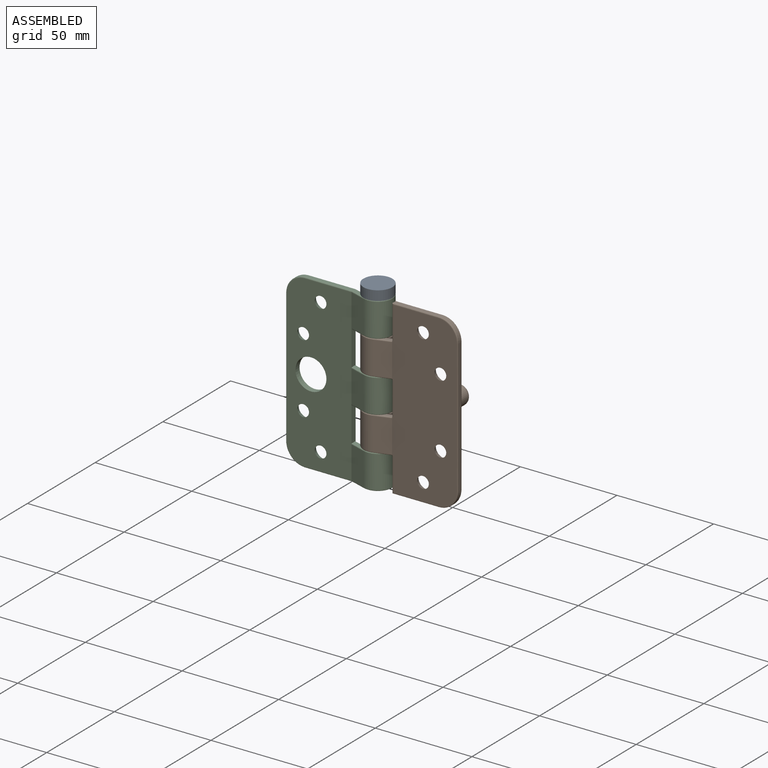
[diagram: assembled view]
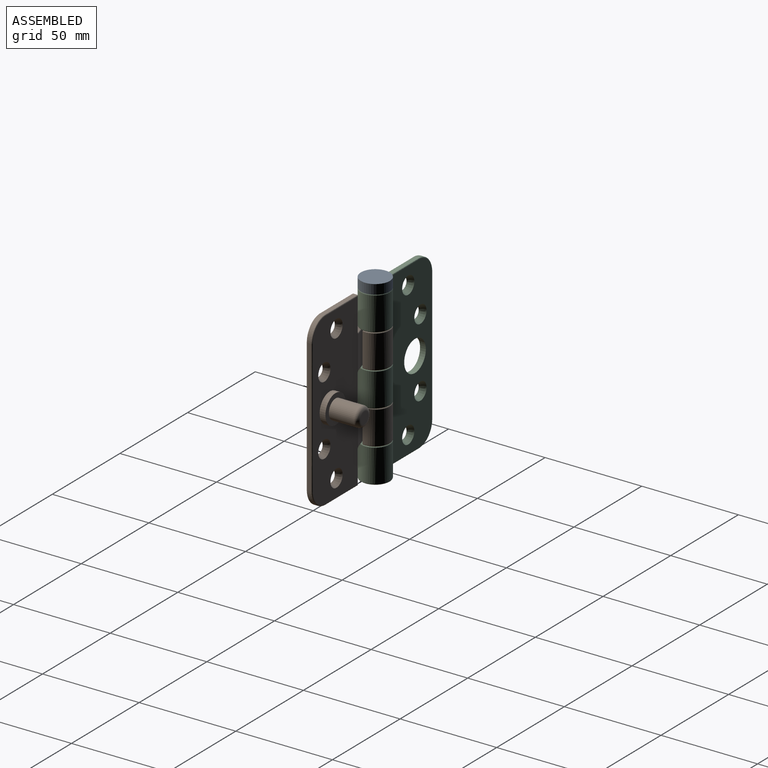
[diagram: assembled view, second angle]
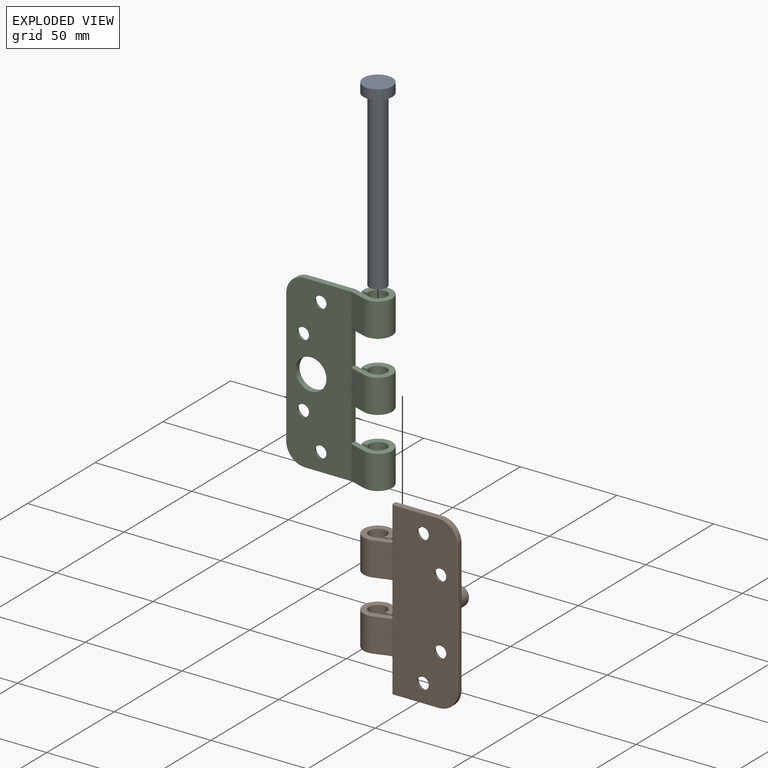
[diagram: exploded view]
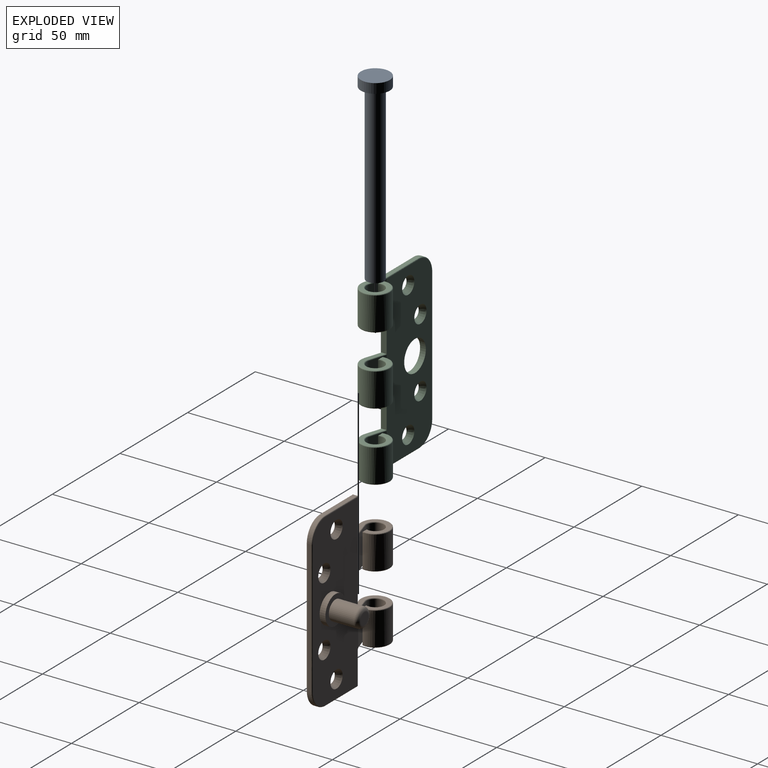
[diagram: exploded view, second angle]
ASSEMBLY  parts=3 mates=2
PART A: 5 faces, bbox 15x95x15 mm
  f0: cylinder r=4.5mm len=90mm, axis (0,-1,0), area 2544.7mm2, adj f1,f3
  f1: plane 9x9mm, normal (0,1,0), area 63.6mm2, adj f0
  f2: cylinder r=7.5mm len=15mm, axis (0,1,0), area 235.6mm2, adj f3,f4
  f3: plane 15x15mm, normal (0,1,0), area 113.1mm2, adj f0,f2
  f4: plane 15x15mm, normal (0,-1,0), area 176.7mm2, adj f2
PART B: 84 faces, bbox 52.3x98x24.3 mm
  f0: bspline ~0.92x0.76mm, area 0.3mm2, adj f1,f12,f37,f40
  f1: bspline ~0.89x0.77mm, area 0.4mm2, adj f0,f12,f22,f36,f37,f42
  f2: bspline ~0.69x0.66mm, area 0.2mm2, adj f3,f14,f24,f37,f47
  f3: bspline ~0.91x0.8mm, area 0.4mm2, adj f2,f24,f36,f37,f51
  f4: bspline ~0.89x0.77mm, area 0.4mm2, adj f13,f22,f31,f32,f52,f55
  f5: bspline ~0.91x0.8mm, area 0.4mm2, adj f24,f31,f32,f62,f65
  f6: bspline ~0.69x0.66mm, area 0.2mm2, adj f7,f15,f24,f34,f67
  f7: bspline ~0.91x0.8mm, area 0.4mm2, adj f6,f24,f33,f34,f68
  f8: bspline ~0.91x0.8mm, area 0.4mm2, adj f24,f33,f35,f68,f69
  f9: bspline ~0.89x0.77mm, area 0.4mm2, adj f12,f22,f33,f35,f75,f76
  f10: bspline ~0.89x0.77mm, area 0.4mm2, adj f11,f13,f22,f33,f34,f76
  f11: bspline ~0.92x0.76mm, area 0.3mm2, adj f10,f13,f34,f77
  f12: plane 17.26x9.19mm, normal (-0.29,0,0.96), area 161.5mm2, adj f0,f1,f9,f20,f22,f40,f74,f75
  f13: plane 17.26x9.19mm, normal (-0.29,0,0.96), area 161.5mm2, adj f4,f10,f11,f21,f22,f55,f57,f77
  f14: plane 16.93x8.2mm, normal (0.31,0,-0.95), area 144.8mm2, adj f2,f16,f24,f47,f69,f70
  f15: plane 16.93x8.2mm, normal (0.31,0,-0.95), area 144.8mm2, adj f6,f17,f24,f64,f65,f67
  f16: cylinder r=7.5mm len=16.8mm, axis (0,1,0), area 658.4mm2, adj f14,f18,f45,f71
  f17: cylinder r=7.5mm len=16.8mm, axis (0,1,0), area 658.4mm2, adj f15,f19,f63,f66
  f18: plane 16.8x3.11mm, normal (0,0,-1), area 52.2mm2, adj f16,f20,f43,f72
  f19: plane 17.37x3.18mm, normal (0,0,-1), area 53.6mm2, adj f17,f21,f34,f61,f66,f78
  f20: cylinder r=4.5mm len=16.8mm, axis (0,1,0), area 404.3mm2, adj f12,f18,f41,f73
  f21: cylinder r=4.5mm len=16.8mm, axis (0,1,0), area 404.3mm2, adj f13,f19,f59,f78
  f22: plane 88.01x33.51mm, normal (0,0,1), area 2451.5mm2, adj f1,f4,f9,f10,f12,f13,f27,f28
  f23: plane 69x2mm, normal (1,0,0), area 138mm2, adj f38,f39,f48,f56
  f24: plane 88.01x33.52mm, normal (0,0,-1), area 2769.2mm2, adj f2,f3,f5,f6,f7,f8,f14,f15
  f25: plane 24x2mm, normal (0,-1,0), area 48mm2, adj f36,f39,f44,f53
  f26: plane 24x2mm, normal (0,1,0), area 48mm2, adj f31,f38,f50,f60
  f27: cone r=3mm half-angle=26.6deg, axis (0,0,1), area 79mm2, adj f22,f24
  f28: cone r=4.5mm half-angle=26.6deg, axis (0,0,1), area 79mm2, adj f22,f24
  f29: cone r=4.5mm half-angle=26.6deg, axis (0,0,1), area 79mm2, adj f22,f24
  f30: cone r=4.5mm half-angle=26.6deg, axis (0,0,1), area 79mm2, adj f22,f24
  f31: plane 17.83x2.91mm, normal (-1,0,0), area 35.9mm2, adj f4,f5,f26,f32,f52,f62
  f32: plane 17.63x14.14mm, normal (0,1,0), area 80.1mm2, adj f4,f5,f31,f55,f57,f59,f61,f63
  f33: plane 17.83x2.91mm, normal (-1,0,0), area 36.1mm2, adj f7,f8,f9,f10,f34,f35,f68,f76
  f34: plane 17.63x14.14mm, normal (0,-1,0), area 81.1mm2, adj f6,f7,f10,f11,f19,f33,f66,f67
  f35: plane 17.63x14.14mm, normal (0,1,0), area 80.1mm2, adj f8,f9,f33,f69,f70,f71,f72,f73
  f36: plane 17.83x2.91mm, normal (-1,0,0), area 35.9mm2, adj f1,f3,f25,f37,f42,f51
  f37: plane 17.63x14.14mm, normal (0,-1,0), area 80.1mm2, adj f0,f1,f2,f3,f36,f40,f41,f43
  f38: cylinder r=10mm len=10mm, axis (0,0,-1), area 31.4mm2, adj f23,f26,f49,f58
  f39: cylinder r=10mm len=10mm, axis (0,0,1), area 31.4mm2, adj f23,f25,f46,f54
  f40: bspline ~8.69x3.09mm, area 7.2mm2, adj f0,f12,f37,f41
  f41: bspline ~10.21x10.19mm, area 20mm2, adj f20,f37,f40,f43
  f42: bspline ~97.9x0.5mm, area 13.8mm2, adj f1,f22,f36,f44
  f43: bspline ~3.42x0.5mm, area 2.1mm2, adj f18,f37,f41,f45
  f44: bspline ~25.2x0.5mm, area 19.3mm2, adj f22,f25,f42,f46
  f45: bspline ~14.99x14.99mm, area 30.9mm2, adj f16,f37,f43,f47
  f46: bspline ~10x10mm, area 12.5mm2, adj f22,f39,f44,f48
  f47: bspline ~8.01x3mm, area 6.7mm2, adj f2,f14,f37,f45
  f48: bspline ~69x0.5mm, area 56mm2, adj f22,f23,f46,f49
  f49: bspline ~10x10mm, area 12.5mm2, adj f22,f38,f48,f50
  f50: bspline ~25.2x0.5mm, area 19.3mm2, adj f22,f26,f49,f52
  f51: bspline ~97.9x0.5mm, area 13.8mm2, adj f3,f24,f36,f53
  f52: bspline ~97.9x0.5mm, area 13.8mm2, adj f4,f22,f31,f50
  f53: bspline ~25.2x0.5mm, area 19.3mm2, adj f24,f25,f51,f54
  f54: bspline ~10x10mm, area 12.5mm2, adj f24,f39,f53,f56
  f55: bspline ~0.92x0.76mm, area 0.3mm2, adj f4,f13,f32,f57
  f56: bspline ~69x0.5mm, area 56mm2, adj f23,f24,f54,f58
  f57: bspline ~8.69x3.09mm, area 7.2mm2, adj f13,f32,f55,f59
  f58: bspline ~10x10mm, area 12.5mm2, adj f24,f38,f56,f60
  f59: bspline ~10.21x10.19mm, area 20mm2, adj f21,f32,f57,f61
  f60: bspline ~25.2x0.5mm, area 19.3mm2, adj f24,f26,f58,f62
  f61: bspline ~3.42x0.5mm, area 2.1mm2, adj f19,f32,f59,f63
  f62: bspline ~97.9x0.5mm, area 13.8mm2, adj f5,f24,f31,f60
  f63: bspline ~14.99x14.99mm, area 30.9mm2, adj f17,f32,f61,f64
  f64: bspline ~8.01x3mm, area 6.7mm2, adj f15,f32,f63,f65
  f65: bspline ~0.69x0.66mm, area 0.2mm2, adj f5,f15,f24,f32,f64
  f66: bspline ~15.38x15.19mm, area 31.1mm2, adj f17,f19,f34,f67
  f67: bspline ~8.01x3mm, area 6.7mm2, adj f6,f15,f34,f66
  f68: bspline ~97.9x0.5mm, area 13.6mm2, adj f7,f8,f24,f33
  f69: bspline ~0.69x0.66mm, area 0.2mm2, adj f8,f14,f24,f35,f70
  f70: bspline ~8.01x3mm, area 6.7mm2, adj f14,f35,f69,f71
  f71: bspline ~14.99x14.99mm, area 30.9mm2, adj f16,f35,f70,f72
  f72: bspline ~3.42x0.5mm, area 2.1mm2, adj f18,f35,f71,f73
  f73: bspline ~10.21x10.19mm, area 20mm2, adj f20,f35,f72,f74
  f74: bspline ~8.69x3.09mm, area 7.2mm2, adj f12,f35,f73,f75
  f75: bspline ~0.92x0.76mm, area 0.3mm2, adj f9,f12,f35,f74
  f76: bspline ~97.9x0.5mm, area 13.6mm2, adj f9,f10,f22,f33
  f77: bspline ~8.69x3.09mm, area 7.2mm2, adj f11,f13,f34,f78
  f78: bspline ~10x9.99mm, area 20.2mm2, adj f19,f21,f34,f77
  f79: cylinder r=7.5mm len=15mm, axis (0,0,-1), area 141.4mm2, adj f22,f80
  f80: plane 15x15mm, normal (0,0,1), area 98.2mm2, adj f79,f81
  f81: cylinder r=5mm len=13mm, axis (0,0,-1), area 408.4mm2, adj f80,f83
  f82: plane 6x6mm, normal (0,0,1), area 28.3mm2, adj f83
  f83: torus R=3mm, axis (0,0,1), area 84.4mm2, adj f81,f82
PART C: 73 faces, bbox 52.1x89.1x15.1 mm
  f0: plane 16.8x9.19mm, normal (0.29,0,0.96), area 161.4mm2, adj f8,f11,f42,f47
  f1: plane 16.8x9.19mm, normal (0.29,0,0.96), area 161.4mm2, adj f9,f11,f52,f63
  f2: plane 16.8x8.2mm, normal (-0.31,0,-0.95), area 144.8mm2, adj f4,f13,f38,f43
  f3: plane 16.8x8.2mm, normal (-0.31,0,-0.95), area 144.8mm2, adj f5,f13,f48,f55
  f4: cylinder r=7.5mm len=16.8mm, axis (0,1,0), area 658.4mm2, adj f2,f6,f39,f44
  f5: cylinder r=7.5mm len=16.8mm, axis (0,1,0), area 658.4mm2, adj f3,f7,f49,f57
  f6: plane 16.8x3.11mm, normal (0,0,-1), area 52.2mm2, adj f4,f8,f40,f45
  f7: plane 16.8x3.11mm, normal (0,0,-1), area 52.2mm2, adj f5,f9,f50,f59
  f8: cylinder r=4.5mm len=16.8mm, axis (0,1,0), area 404.3mm2, adj f0,f6,f41,f46
  f9: cylinder r=4.5mm len=16.8mm, axis (0,1,0), area 404.3mm2, adj f1,f7,f51,f61
  f10: plane 16.8x9.19mm, normal (0.29,0,0.96), area 161.4mm2, adj f11,f17,f37,f70
  f11: plane 88.01x33.51mm, normal (0,0,1), area 2453.6mm2, adj f0,f1,f10,f20,f21,f22,f23,f24
  f12: plane 69x2mm, normal (-1,0,0), area 138mm2, adj f31,f32,f56,f69
  f13: plane 88.01x33.51mm, normal (0,0,-1), area 2595.1mm2, adj f2,f3,f14,f20,f21,f22,f23,f24
  f14: plane 16.8x8.2mm, normal (-0.31,0,-0.95), area 144.8mm2, adj f13,f15,f33,f62
  f15: cylinder r=7.5mm len=16.8mm, axis (0,1,0), area 658.4mm2, adj f14,f16,f34,f64
  f16: plane 16.8x3.11mm, normal (0,0,-1), area 52.2mm2, adj f15,f17,f35,f66
  f17: cylinder r=4.5mm len=16.8mm, axis (0,1,0), area 404.3mm2, adj f10,f16,f36,f68
  f18: plane 41.54x14.05mm, normal (0,-1,0), area 127.8mm2, adj f31,f60,f62,f64,f66,f68,f70,f72
  f19: plane 41.54x14.05mm, normal (0,1,0), area 127.8mm2, adj f32,f53,f55,f57,f59,f61,f63,f65
  f20: cone r=3mm half-angle=26.6deg, axis (0,0,1), area 79mm2, adj f11,f13
  f21: cone r=4.5mm half-angle=26.6deg, axis (0,0,1), area 79mm2, adj f11,f13
  f22: cone r=4.5mm half-angle=26.6deg, axis (0,0,1), area 79mm2, adj f11,f13
  f23: cone r=4.5mm half-angle=26.6deg, axis (0,0,1), area 79mm2, adj f11,f13
  f24: plane 18.88x3.08mm, normal (1,0,0), area 53.6mm2, adj f11,f13,f25,f26,f43,f47,f48,f52
  f25: plane 17.54x14.05mm, normal (0,1,0), area 79.8mm2, adj f24,f43,f44,f45,f46,f47
  f26: plane 17.54x14.05mm, normal (0,-1,0), area 79.8mm2, adj f24,f48,f49,f50,f51,f52
  f27: plane 18.88x3.08mm, normal (1,0,0), area 53.6mm2, adj f11,f13,f28,f29,f33,f37,f38,f42
  f28: plane 17.54x14.05mm, normal (0,1,0), area 79.8mm2, adj f27,f33,f34,f35,f36,f37
  f29: plane 17.54x14.05mm, normal (0,-1,0), area 79.8mm2, adj f27,f38,f39,f40,f41,f42
  f30: cylinder r=8mm len=16mm, axis (0,0,-1), area 150.8mm2, adj f11,f13
  f31: cylinder r=10mm len=10mm, axis (0,0,1), area 31.4mm2, adj f12,f18,f58,f71
  f32: cylinder r=10mm len=10mm, axis (0,0,-1), area 31.4mm2, adj f12,f19,f54,f67
  f33: bspline ~8.93x3.3mm, area 7.1mm2, adj f14,f27,f28,f34
  f34: bspline ~14.99x14.99mm, area 30.9mm2, adj f15,f28,f33,f35
  f35: bspline ~3.42x0.5mm, area 2.1mm2, adj f16,f28,f34,f36
  f36: bspline ~10.21x10.19mm, area 20mm2, adj f17,f28,f35,f37
  f37: bspline ~9.33x3.28mm, area 7.7mm2, adj f10,f27,f28,f36
  f38: bspline ~8.93x3.3mm, area 7.1mm2, adj f2,f27,f29,f39
  f39: bspline ~14.99x14.99mm, area 30.9mm2, adj f4,f29,f38,f40
  f40: bspline ~3.42x0.5mm, area 2.1mm2, adj f6,f29,f39,f41
  f41: bspline ~10.21x10.19mm, area 20mm2, adj f8,f29,f40,f42
  f42: bspline ~9.33x3.28mm, area 7.7mm2, adj f0,f27,f29,f41
  f43: bspline ~8.93x3.3mm, area 7.1mm2, adj f2,f24,f25,f44
  f44: bspline ~14.99x14.99mm, area 30.9mm2, adj f4,f25,f43,f45
  f45: bspline ~3.42x0.5mm, area 2.1mm2, adj f6,f25,f44,f46
  f46: bspline ~10.21x10.19mm, area 20mm2, adj f8,f25,f45,f47
  f47: bspline ~9.33x3.28mm, area 7.7mm2, adj f0,f24,f25,f46
  f48: bspline ~8.93x3.3mm, area 7.1mm2, adj f3,f24,f26,f49
  f49: bspline ~14.99x14.99mm, area 30.9mm2, adj f5,f26,f48,f50
  f50: bspline ~3.42x0.5mm, area 2.1mm2, adj f7,f26,f49,f51
  f51: bspline ~10.21x10.19mm, area 20mm2, adj f9,f26,f50,f52
  f52: bspline ~9.33x3.28mm, area 7.7mm2, adj f1,f24,f26,f51
  f53: bspline ~24.48x0.5mm, area 19.5mm2, adj f13,f19,f54,f55
  f54: bspline ~10x10mm, area 12.5mm2, adj f13,f32,f53,f56
  f55: bspline ~8.43x3.14mm, area 7mm2, adj f3,f19,f53,f57
  f56: bspline ~69x0.5mm, area 56mm2, adj f12,f13,f54,f58
  f57: bspline ~14.99x14.99mm, area 30.9mm2, adj f5,f19,f55,f59
  f58: bspline ~10x10mm, area 12.5mm2, adj f13,f31,f56,f60
  f59: bspline ~3.42x0.5mm, area 2.1mm2, adj f7,f19,f57,f61
  f60: bspline ~24.48x0.5mm, area 19.5mm2, adj f13,f18,f58,f62
  f61: bspline ~10.21x10.19mm, area 20mm2, adj f9,f19,f59,f63
  f62: bspline ~8.43x3.14mm, area 7mm2, adj f14,f18,f60,f64
  f63: bspline ~9.79x3.42mm, area 7.8mm2, adj f1,f19,f61,f65
  f64: bspline ~14.99x14.99mm, area 30.9mm2, adj f15,f18,f62,f66
  f65: bspline ~25.2x0.5mm, area 19.4mm2, adj f11,f19,f63,f67
  f66: bspline ~3.42x0.5mm, area 2.1mm2, adj f16,f18,f64,f68
  f67: bspline ~10x10mm, area 12.5mm2, adj f11,f32,f65,f69
  f68: bspline ~10.21x10.19mm, area 20mm2, adj f17,f18,f66,f70
  f69: bspline ~69x0.5mm, area 56mm2, adj f11,f12,f67,f71
  f70: bspline ~9.79x3.42mm, area 7.8mm2, adj f10,f18,f68,f72
  f71: bspline ~10x10mm, area 12.5mm2, adj f11,f31,f69,f72
  f72: bspline ~25.2x0.5mm, area 19.4mm2, adj f11,f18,f70,f71
PLACE A rot(axis=(0,-0.71,0.71),180deg) t=(262.93,27.11,-41.37)mm fixed
PLACE B rot(axis=(-1,0,0),90deg) t=(-96.07,24.11,-41.37)mm
PLACE C rot(axis=(-1,0,0),90deg) t=(-96.07,24.11,-41.37)mm
MATE revolute C.f4 <-> B.f16  axis (0,0,-1) through (83.43,25.61,30.33)mm
MATE fastened A.f0 <-> C.f4  axis (0,0,1) through (83.43,25.61,47.63)mm
